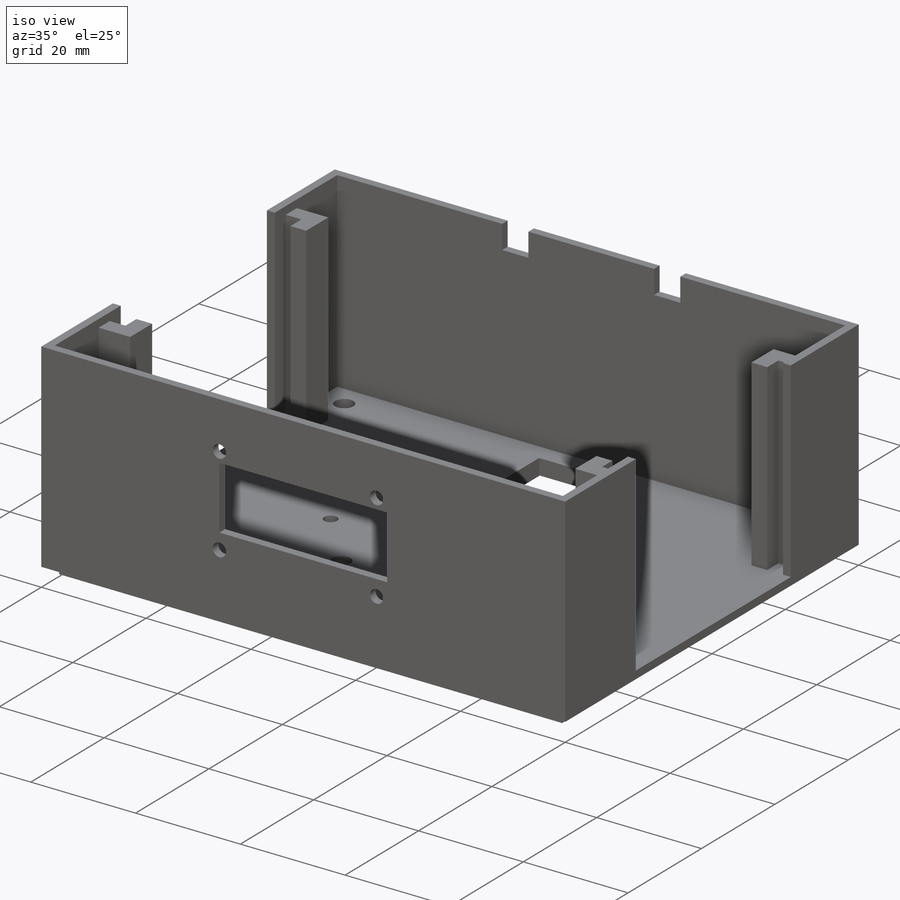
[diagram: iso view]
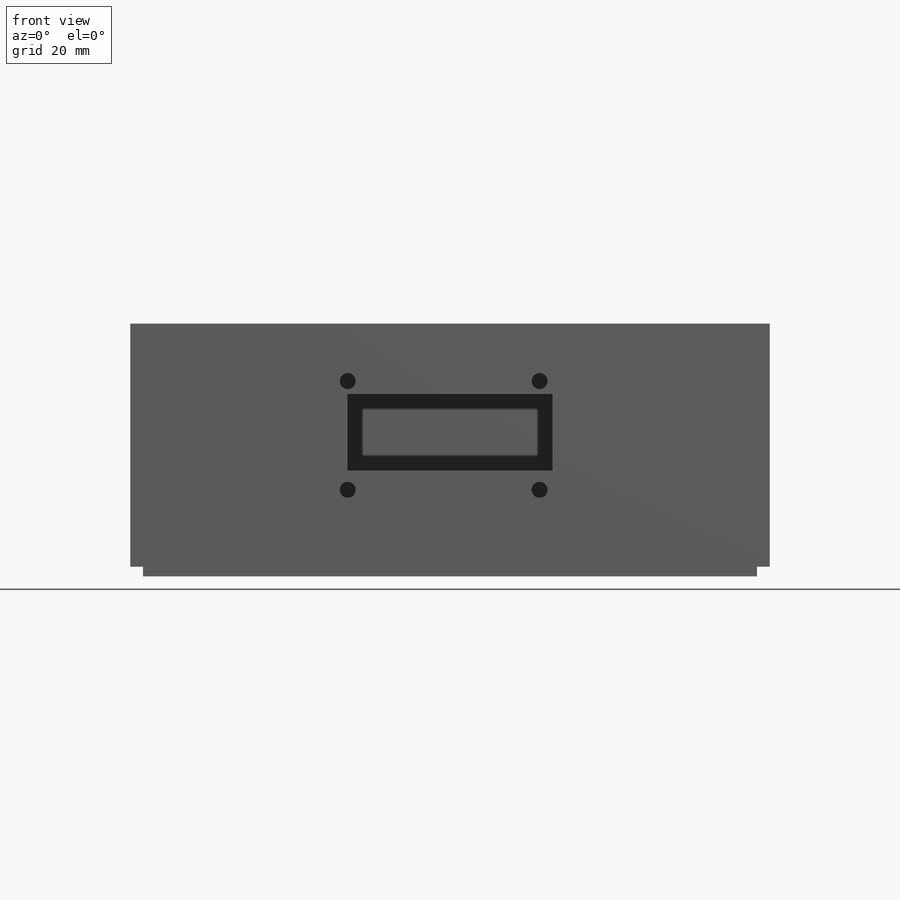
[diagram: front view]
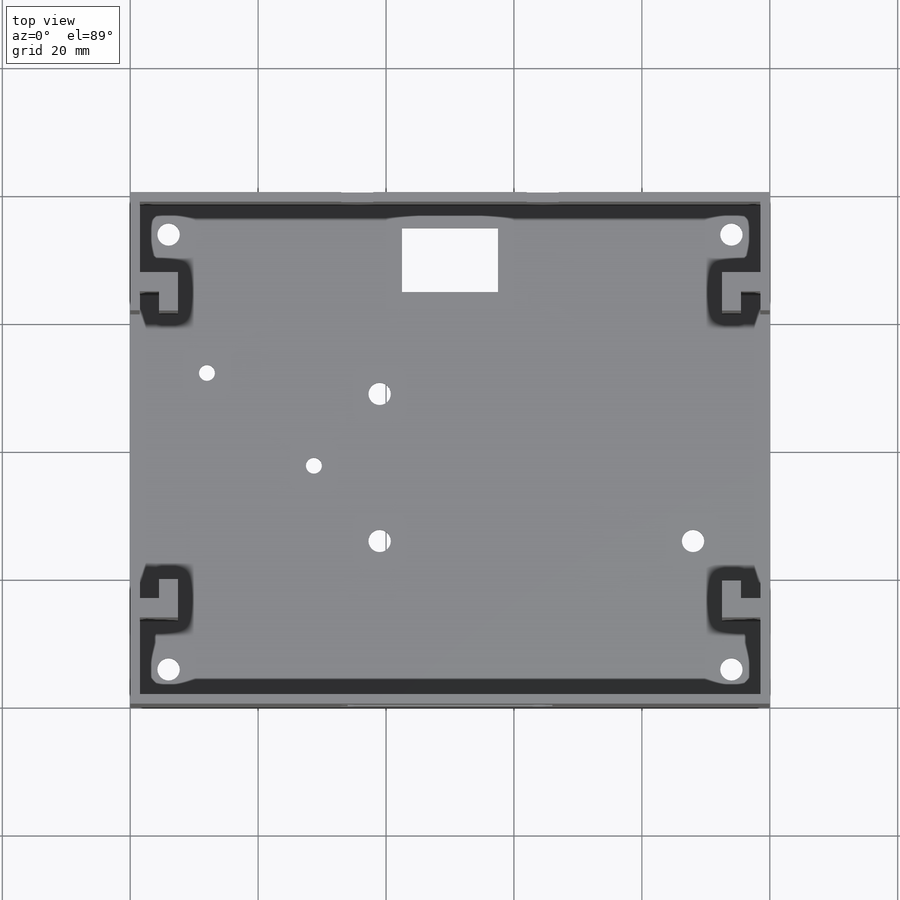
[diagram: top view]
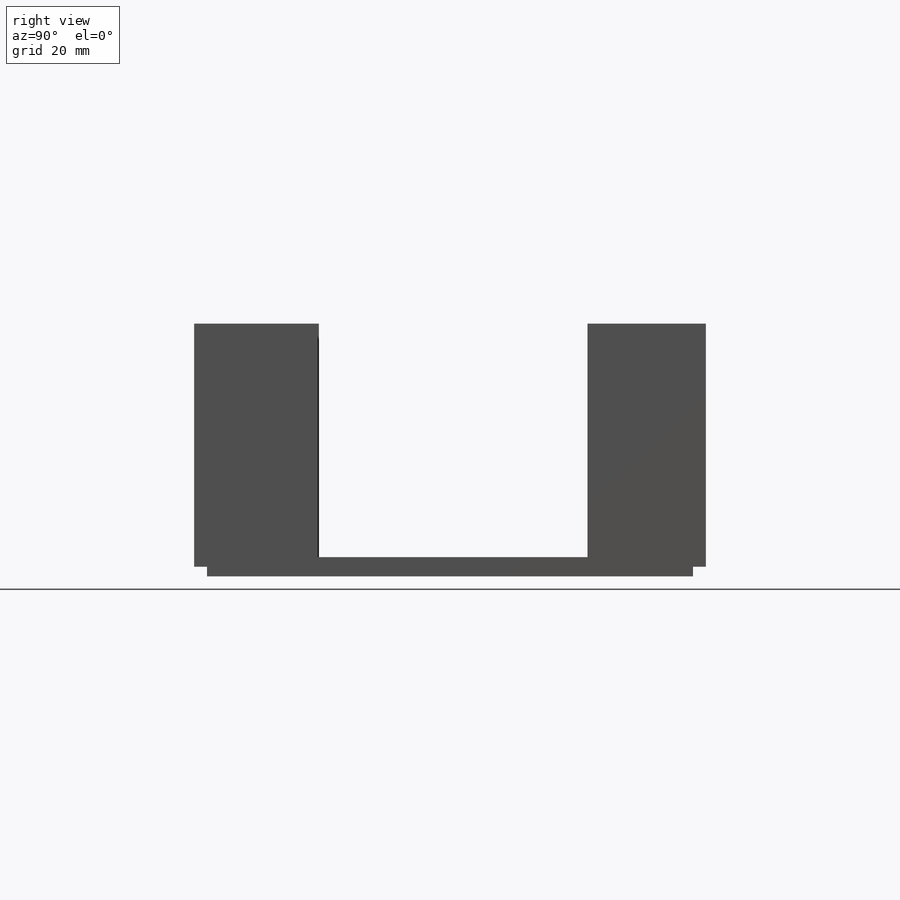
[diagram: right view]
SOLIDWORKS PART (.sldprt)
format: sldprt  version: not decoded by parser v0  size: 921,600 bytes
history: native  units: mm
features: sketch x6, plane x3, extrude x3, cut_extrude x3, material x1 (+10 scaffold rows collapsed)
feature tree (26):
  scaffold x10  (default folders/planes/origin — collapsed)
  material  "Matériau <non spécifié>"
  plane  "Plan de face"
  plane  "Plan de dessus"
  plane  "Plan de droite"
  sketch  "Esquisse1"  dims[c1.D7=3.5mm c1.D8=3.5mm c1.D9=3.5mm c1.D10=3.5mm c1.D11=3.5mm c1.D12=3.5mm c1.D13=3.5mm c1.D14=3.5mm c1.D15=3.5mm c1.D16=3.5mm c1.D17=3.5mm c1.D18=3.5mm c1.D19=3.5mm c1.D20=3.5mm c1.D21=3.5mm c1.D22=3.5mm c1.D23=3.5mm c1.D24=3.5mm c1.D25=2.5mm c1.D26=2.5mm c1.D27=2.5mm c1.D28=2.5mm c2.D27=2.5mm c2.D1=100.0mm c2.D2=80.0mm c2.D3=10.0mm c2.D4=15.0mm c2.D5=42.5mm c2.D6=5.0mm c2.D11=6.0mm c2.D12=6.0mm c2.D13=6.0mm c2.D14=6.0mm c2.D15=6.0mm c2.D16=6.0mm c2.D17=6.0mm c2.D18=6.0mm c2.D22=23.0mm c2.D23=49.0mm c2.D24=12.0mm c3.D27=16.72mm c3.D28=14.51mm c4.D27=14.51mm c4.D28=16.72mm c5.D27=12.0mm]
  extrude  "Boss.-Extru.1"  Depth=1.5mm
  sketch  "Esquisse2"  dims[D1=1.5mm D2=1.5mm D3=1.5mm D4=1.5mm D5=12.0mm D6=3.0mm D7=3.0mm D8=6.0mm D9=3.0mm D10=6.0mm D11=3.0mm D12=3.0mm D13=3.0mm D14=48.0mm D15=6.0mm D16=3.0mm D17=3.0mm D18=3.0mm D19=6.0mm D20=3.0mm D21=~2.737081mm D22=3.0mm D23=12.0mm D24=3.0mm D25=48.0mm]
  extrude  "Boss.-Extru.2"  Depth=36.5mm
  sketch  "Esquisse3"  dims[c1.D5=2.5mm c1.D6=2.5mm c1.D7=2.5mm c1.D8=2.5mm c1.D9=2.5mm c1.D10=2.5mm c1.D11=2.5mm c1.D12=2.5mm c1.D1=12.0mm c1.D2=32.0mm c1.D3=34.0mm c1.D4=15.0mm c2.D9=2.0mm c2.D10=2.0mm c2.D11=3.0mm c2.D12=3.0mm c2.D13=2.0mm c2.D14=2.0mm]
  cut_extrude  "Enlèv. mat.-Extru.1"  Depth=5mm
  sketch  "Esquisse4"  dims[c1.D5=3.5mm c1.D6=3.5mm c1.D9=2.5mm c1.D10=3.5mm c1.D1=2.0mm c1.D2=2.0mm c1.D3=2.0mm c1.D4=2.0mm c1.D7=23.0mm c1.D8=49.0mm c2.D10=8.0mm]
  extrude  "Boss.-Extru.3"  Depth=1.5mm
  sketch  "Esquisse5"
  cut_extrude  "Enlèv. mat.-Extru.2"  Depth=1.5mm
  sketch  "Esquisse6"  dims[D1=4.5mm D2=5.0mm D3=24.0mm D4=5.0mm D5=4.5mm D6=31.5mm D7=33.0mm]
  cut_extrude  "Enlèv. mat.-Extru.3"  Depth=10mm
decode coverage: 11 of 12 modeling features carry decoded parameters
note: ~ marks probable driven/reference dimensions
note: suppression state not decoded; provenance and decode notes live in map.json
